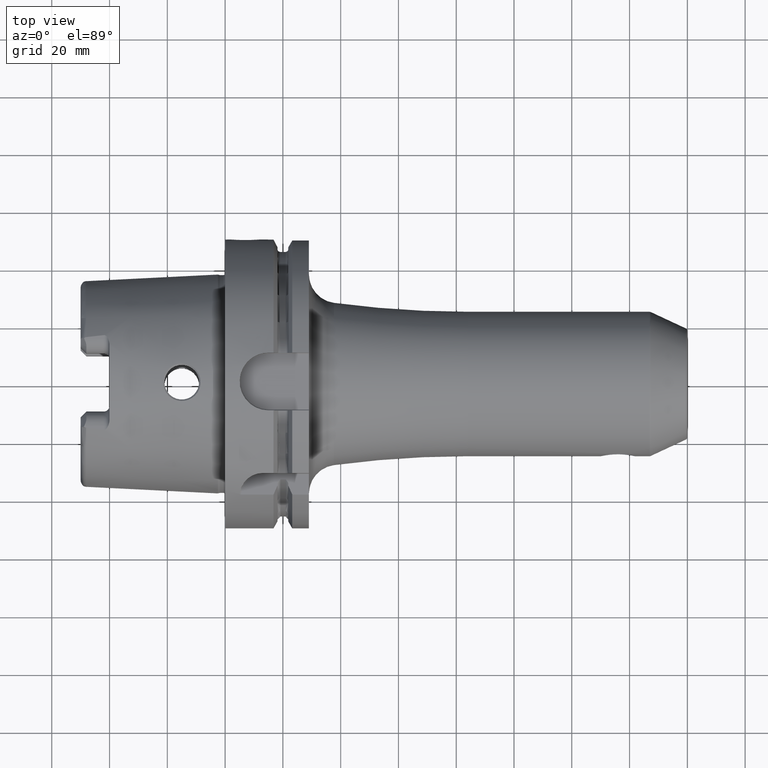
[diagram: clean part render]
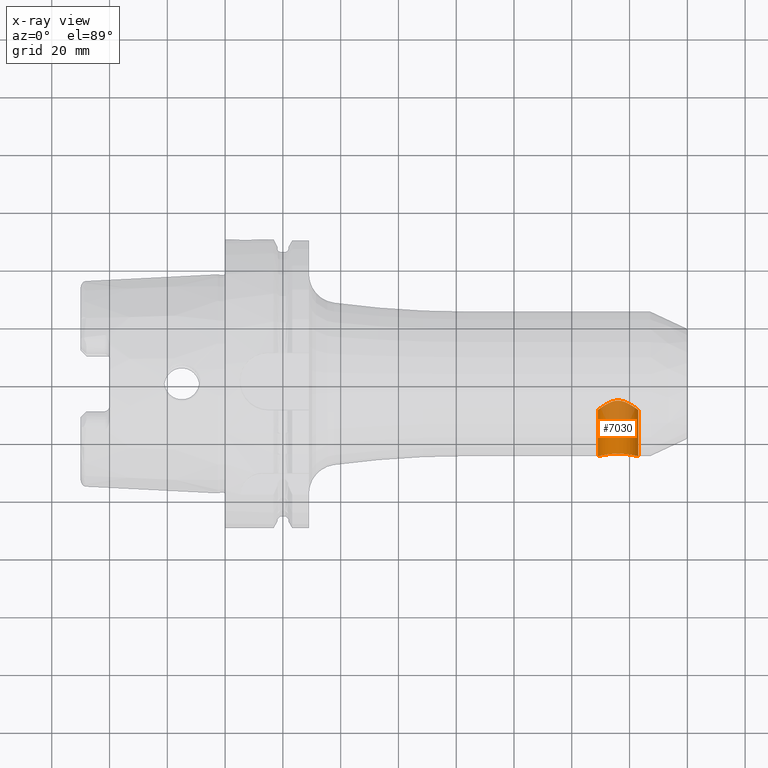
[diagram: x-ray — body ghosted, one internal face saturated and labeled with its STEP entity id]
A machine part, top view, then the same camera in x-ray: the body is ghosted and one INTERNAL B-rep face — a face not visible from any outside direction — is saturated and labeled: STEP entity #7030.
In plain terms, the highlighted cylindrical surface (edge-blend (fillet) strip) has radius 7 mm, axis along (0, -1, 0).
Its self-contained STEP definition (entity closure, byte-faithful):
#6869=CARTESIAN_POINT('',(1.43E2,-2.500001596611E1,0.E0));
#6870=CARTESIAN_POINT('',(1.43E2,-2.500001596611E1,-2.599143758647E-1));
#6871=CARTESIAN_POINT('',(1.429709881749E2,-2.499184641275E1,
-7.785492842602E-1));
#6872=CARTESIAN_POINT('',(1.428425499376E2,-2.495620215888E1,
-1.542265663156E0));
#6873=CARTESIAN_POINT('',(1.426312362510E2,-2.489887368168E1,
-2.286046986109E0));
#6874=CARTESIAN_POINT('',(1.423387545563E2,-2.482228427979E1,
-3.003460592223E0));
#6875=CARTESIAN_POINT('',(1.419665158929E2,-2.472945888856E1,
-3.688640915725E0));
#6876=CARTESIAN_POINT('',(1.415136559966E2,-2.462365402529E1,
-4.337011527174E0));
#6877=CARTESIAN_POINT('',(1.409881330635E2,-2.451086366807E1,
-4.932292543242E0));
#6878=CARTESIAN_POINT('',(1.404017290876E2,-2.439781739333E1,
-5.461898391277E0));
#6879=CARTESIAN_POINT('',(1.397577490854E2,-2.428936237481E1,
-5.923783582585E0));
#6880=CARTESIAN_POINT('',(1.390568713901E2,-2.419034012559E1,
-6.314336506376E0));
#6881=CARTESIAN_POINT('',(1.383170110191E2,-2.410771537697E1,
-6.621354485225E0));
#6882=CARTESIAN_POINT('',(1.375579823608E2,-2.404646874277E1,
-6.839432576654E0));
#6883=CARTESIAN_POINT('',(1.367849166157E2,-2.400859566434E1,
-6.970629639976E0));
#6884=CARTESIAN_POINT('',(1.359968824648E2,-2.399565127821E1,
-7.014859666140E0));
#6885=CARTESIAN_POINT('',(1.352088453797E2,-2.400880043808E1,
-6.969927528860E0));
#6886=CARTESIAN_POINT('',(1.344357737853E2,-2.404687413976E1,
-6.838013812569E0));
#6887=CARTESIAN_POINT('',(1.336767548956E2,-2.410831606012E1,
-6.619178054455E0));
#6888=CARTESIAN_POINT('',(1.329370268676E2,-2.419111448184E1,
-6.311383989568E0));
#6889=CARTESIAN_POINT('',(1.322365056983E2,-2.429025650332E1,
-5.920131874559E0));
#6890=CARTESIAN_POINT('',(1.315931566033E2,-2.439874726979E1,
-5.457753048551E0));
#6891=CARTESIAN_POINT('',(1.310076775372E2,-2.451172410308E1,
-4.928012390452E0));
#6892=CARTESIAN_POINT('',(1.304831906300E2,-2.462436691950E1,
-4.332942713402E0));
#6893=CARTESIAN_POINT('',(1.300313137304E2,-2.472998734171E1,
-3.685061178647E0));
#6894=CARTESIAN_POINT('',(1.296598667624E2,-2.482263928295E1,
-3.000473235669E0));
#6895=CARTESIAN_POINT('',(1.293680004993E2,-2.489907856777E1,
-2.283740724572E0));
#6896=CARTESIAN_POINT('',(1.291571103401E2,-2.495629600536E1,
-1.540631249225E0));
#6897=CARTESIAN_POINT('',(1.290289451186E2,-2.499186517359E1,
-7.776752863192E-1));
#6898=CARTESIAN_POINT('',(1.29E2,-2.500001601508E1,-2.596163854578E-1));
#6899=CARTESIAN_POINT('',(1.29E2,-2.500001601508E1,0.E0));
#6901=CARTESIAN_POINT('',(1.29E2,-9.E0,0.E0));
#6902=CARTESIAN_POINT('',(1.29E2,-9.E0,-2.216327687328E-1));
#6903=CARTESIAN_POINT('',(1.290210696E2,-8.983597209360E0,-6.671368885556E-1));
#6904=CARTESIAN_POINT('',(1.291174231982E2,-8.908858528544E0,
-1.335254126145E0));
#6905=CARTESIAN_POINT('',(1.292795350640E2,-8.784043230209E0,
-1.998820330270E0));
#6906=CARTESIAN_POINT('',(1.295135158807E2,-8.606052246956E0,
-2.663770935450E0));
#6907=CARTESIAN_POINT('',(1.298226627117E2,-8.375040002599E0,
-3.319948427587E0));
#6908=CARTESIAN_POINT('',(1.302140323257E2,-8.089939002185E0,
-3.964885789371E0));
#6909=CARTESIAN_POINT('',(1.306927877891E2,-7.753630291284E0,
-4.587555238104E0));
#6910=CARTESIAN_POINT('',(1.312537281603E2,-7.379587996041E0,
-5.166400974240E0));
#6911=CARTESIAN_POINT('',(1.318841572152E2,-6.988864440649E0,
-5.681892957573E0));
#6912=CARTESIAN_POINT('',(1.325708226710E2,-6.606240179767E0,
-6.119679363870E0));
#6913=CARTESIAN_POINT('',(1.332543687943E2,-6.278260048851E0,
-6.452752882276E0));
#6914=CARTESIAN_POINT('',(1.339109512579E2,-6.020284806039E0,
-6.692167881763E0));
#6915=CARTESIAN_POINT('',(1.345347015779E2,-5.833592045998E0,
-6.854346068386E0));
#6916=CARTESIAN_POINT('',(1.351335841670E2,-5.712902712312E0,
-6.954623680366E0));
#6917=CARTESIAN_POINT('',(1.357149966355E2,-5.654370371141E0,
-7.002016233090E0));
#6918=CARTESIAN_POINT('',(1.362850003728E2,-5.654367053065E0,
-7.002018969711E0));
#6919=CARTESIAN_POINT('',(1.368665169970E2,-5.712917033221E0,
-6.954611934185E0));
#6920=CARTESIAN_POINT('',(1.374653566735E2,-5.833607941771E0,
-6.854332751505E0));
#6921=CARTESIAN_POINT('',(1.380890936848E2,-6.020302220088E0,
-6.692151496565E0));
#6922=CARTESIAN_POINT('',(1.387456208701E2,-6.278253556131E0,
-6.452760340289E0));
#6923=CARTESIAN_POINT('',(1.394293299523E2,-6.606317041953E0,
-6.119599173668E0));
#6924=CARTESIAN_POINT('',(1.401159369066E2,-6.988923434928E0,
-5.681816038936E0));
#6925=CARTESIAN_POINT('',(1.407462117807E2,-7.379550707333E0,
-5.166449062421E0));
#6926=CARTESIAN_POINT('',(1.413071332824E2,-7.753576012147E0,
-4.587646462506E0));
#6927=CARTESIAN_POINT('',(1.417858965433E2,-8.089888053123E0,
-3.964989293614E0));
#6928=CARTESIAN_POINT('',(1.421772797582E2,-8.374997430428E0,
-3.320056543597E0));
#6929=CARTESIAN_POINT('',(1.424864476180E2,-8.606024647433E0,
-2.663862361327E0));
#6930=CARTESIAN_POINT('',(1.427204428201E2,-8.784026278694E0,
-1.998895217451E0));
#6931=CARTESIAN_POINT('',(1.428825634921E2,-8.908848225467E0,
-1.335327168551E0));
#6932=CARTESIAN_POINT('',(1.429789292793E2,-8.983596330621E0,
-6.671636103526E-1));
#6933=CARTESIAN_POINT('',(1.43E2,-9.E0,-2.216417164923E-1));
#6934=CARTESIAN_POINT('',(1.43E2,-9.E0,0.E0));
#6968=DIRECTION('',(0.E0,1.E0,0.E0));
#6969=VECTOR('',#6968,1.600001596611E1);
#6970=CARTESIAN_POINT('',(1.43E2,-2.500001596611E1,0.E0));
#6971=LINE('',#6970,#6969);
#7007=DIRECTION('',(0.E0,1.E0,0.E0));
#7008=VECTOR('',#7007,1.600001601508E1);
#7009=CARTESIAN_POINT('',(1.29E2,-2.500001601508E1,0.E0));
#7010=LINE('',#7009,#7008);
#7011=VERTEX_POINT('',#6899);
#7012=VERTEX_POINT('',#6869);
#7013=VERTEX_POINT('',#6934);
#7014=VERTEX_POINT('',#6901);
#7015=CARTESIAN_POINT('',(1.36E2,3.985421899874E0,0.E0));
#7016=DIRECTION('',(0.E0,-1.E0,0.E0));
#7017=DIRECTION('',(-1.E0,0.E0,0.E0));
#7018=AXIS2_PLACEMENT_3D('',#7015,#7016,#7017);
#7019=CYLINDRICAL_SURFACE('',#7018,7.E0);
#7021=ORIENTED_EDGE('',*,*,#7020,.T.);
#7023=ORIENTED_EDGE('',*,*,#7022,.T.);
#7025=ORIENTED_EDGE('',*,*,#7024,.T.);
#7027=ORIENTED_EDGE('',*,*,#7026,.F.);
#7028=EDGE_LOOP('',(#7021,#7023,#7025,#7027));
#7029=FACE_OUTER_BOUND('',#7028,.F.);
#7030=ADVANCED_FACE('',(#7029),#7019,.F.);
#6900=B_SPLINE_CURVE_WITH_KNOTS('',3,(#6869,#6870,#6871,#6872,#6873,#6874,#6875,
#6876,#6877,#6878,#6879,#6880,#6881,#6882,#6883,#6884,#6885,#6886,#6887,#6888,
#6889,#6890,#6891,#6892,#6893,#6894,#6895,#6896,#6897,#6898,#6899),
.UNSPECIFIED.,.F.,.F.,(4,1,1,1,1,1,1,1,1,1,1,1,1,1,1,1,1,1,1,1,1,1,1,1,1,1,1,1,
4),(0.E0,3.571428571429E-2,7.142857142857E-2,1.071428571429E-1,
1.428571428571E-1,1.785714285714E-1,2.142857142857E-1,2.5E-1,2.857142857143E-1,
3.214285714286E-1,3.571428571429E-1,3.928571428571E-1,4.285714285714E-1,
4.642857142857E-1,5.E-1,5.357142857143E-1,5.714285714286E-1,6.071428571429E-1,
6.428571428571E-1,6.785714285714E-1,7.142857142857E-1,7.5E-1,7.857142857143E-1,
8.214285714286E-1,8.571428571429E-1,8.928571428571E-1,9.285714285714E-1,
9.642857142857E-1,1.E0),.UNSPECIFIED.);
#6935=B_SPLINE_CURVE_WITH_KNOTS('',3,(#6901,#6902,#6903,#6904,#6905,#6906,#6907,
#6908,#6909,#6910,#6911,#6912,#6913,#6914,#6915,#6916,#6917,#6918,#6919,#6920,
#6921,#6922,#6923,#6924,#6925,#6926,#6927,#6928,#6929,#6930,#6931,#6932,#6933,
#6934),.UNSPECIFIED.,.F.,.F.,(4,1,1,1,1,1,1,1,1,1,1,1,1,1,1,1,1,1,1,1,1,1,1,1,1,
1,1,1,1,1,1,4),(0.E0,3.225806451613E-2,6.451612903226E-2,9.677419354839E-2,
1.290322580645E-1,1.612903225806E-1,1.935483870968E-1,2.258064516129E-1,
2.580645161290E-1,2.903225806452E-1,3.225806451613E-1,3.548387096774E-1,
3.870967741935E-1,4.193548387097E-1,4.516129032258E-1,4.838709677419E-1,
5.161290322581E-1,5.483870967742E-1,5.806451612903E-1,6.129032258065E-1,
6.451612903226E-1,6.774193548387E-1,7.096774193548E-1,7.419354838710E-1,
7.741935483871E-1,8.064516129032E-1,8.387096774194E-1,8.709677419355E-1,
9.032258064516E-1,9.354838709677E-1,9.677419354839E-1,1.E0),.UNSPECIFIED.);
#7020=EDGE_CURVE('',#7012,#7011,#6900,.T.);
#7022=EDGE_CURVE('',#7011,#7014,#7010,.T.);
#7024=EDGE_CURVE('',#7014,#7013,#6935,.T.);
#7026=EDGE_CURVE('',#7012,#7013,#6971,.T.);